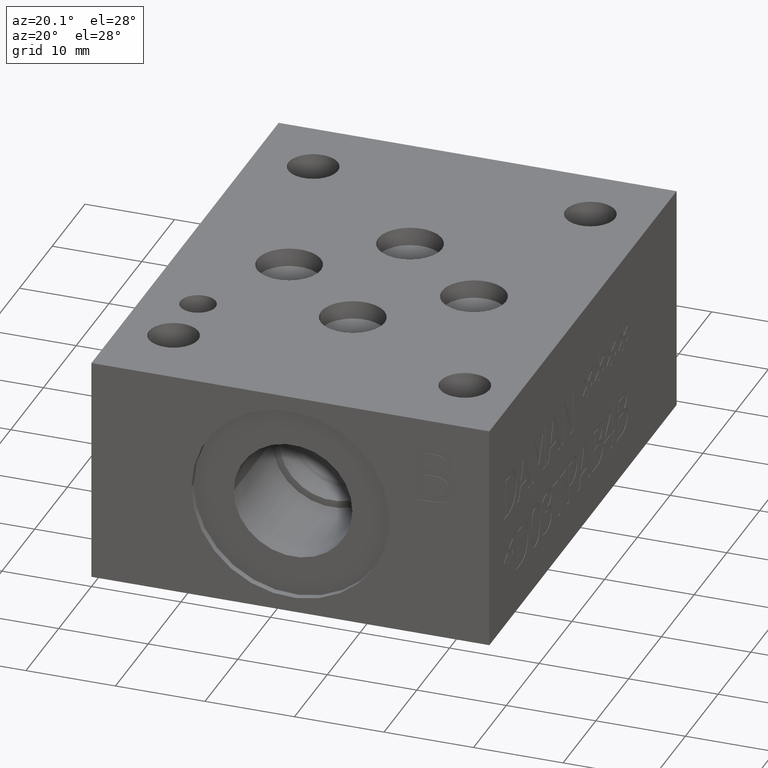
[diagram: clean part render]
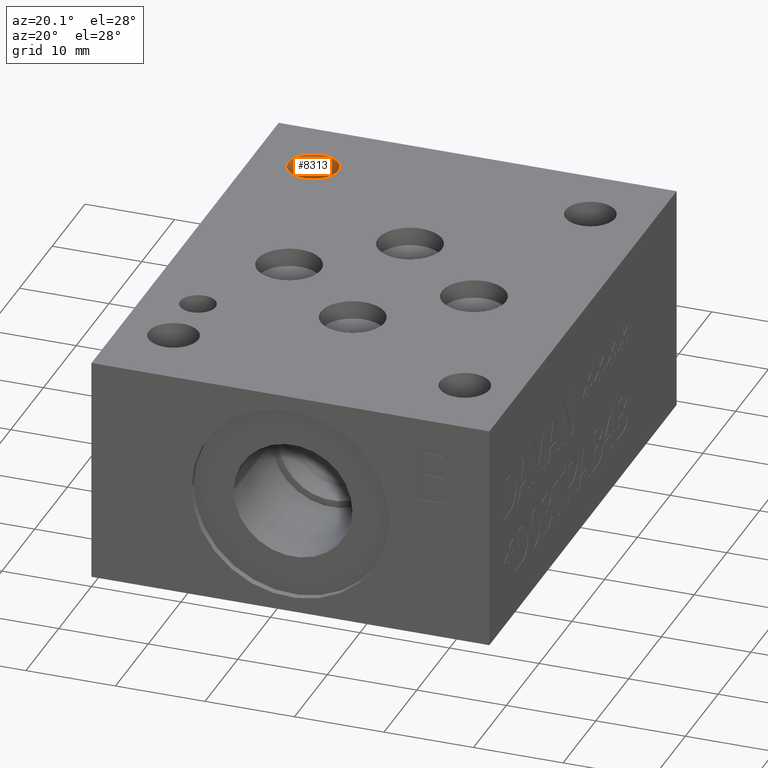
[diagram: same view with one face highlighted and labeled with its STEP entity id]
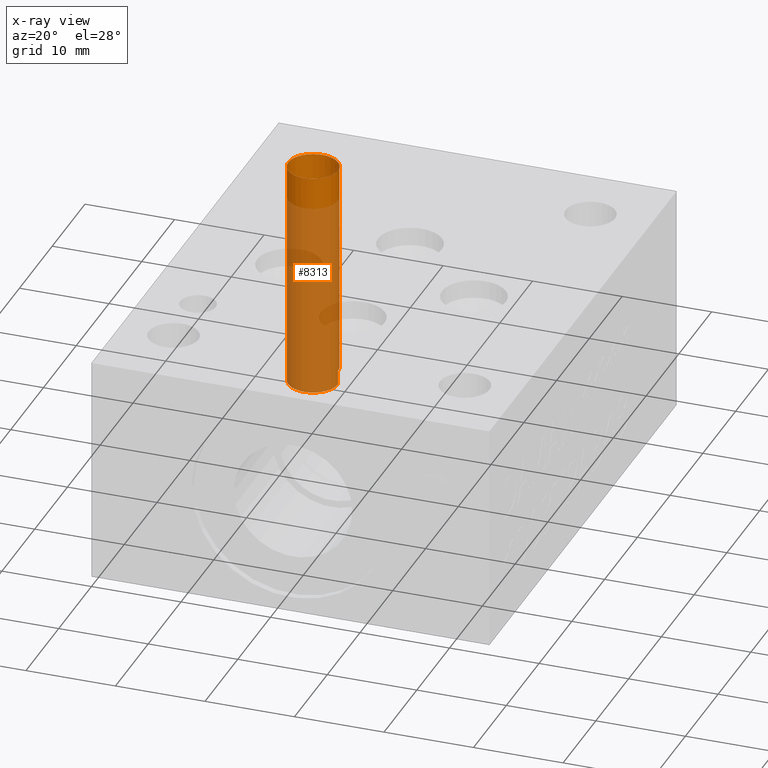
[diagram: x-ray of the same camera — body ghosted, the highlighted face saturated]
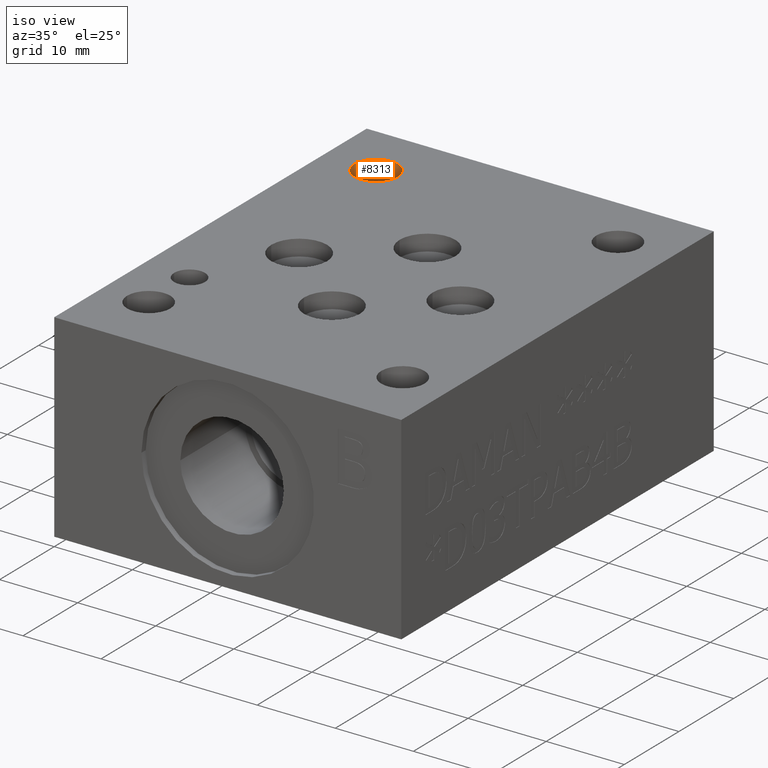
[diagram: same view with one face highlighted and labeled with its STEP entity id]
A machine part, auxiliary view. The second image highlights one B-rep face of the part: STEP entity #8313.
The next image is the same camera in x-ray: the body ghosted, the highlighted face saturated — about 79% of this face is hidden behind the body in this view.
A second angle (iso view) of the same face is appended — the face is thin or edge-on in the first view.
In plain terms, the highlighted cylindrical surface (bore or boss wall) has radius 2.7686 mm, axis along (0, 0, 1).
Its self-contained STEP definition (entity closure, byte-faithful):
#34=CYLINDRICAL_SURFACE('',#8710,2.7686);
#91=CIRCLE('',#8678,2.7686);
#92=CIRCLE('',#8679,2.7686);
#107=CIRCLE('',#8711,2.7686);
#883=FACE_OUTER_BOUND('',#1368,.T.);
#1368=EDGE_LOOP('',(#7356,#7357,#7358,#7359,#7360,#7361,#7362,#7363));
#2230=LINE('',#13858,#3096);
#2231=LINE('',#13860,#3097);
#2247=LINE('',#13969,#3113);
#3096=VECTOR('',#10215,10.);
#3097=VECTOR('',#10216,10.);
#3113=VECTOR('',#10322,2.7686);
#3323=B_SPLINE_CURVE_WITH_KNOTS('',3,(#13832,#13833,#13834,#13835,#13836,
#13837,#13838,#13839,#13840,#13841,#13842,#13843,#13844,#13845,#13846,#13847,
#13848,#13849,#13850,#13851,#13852,#13853,#13854),.UNSPECIFIED.,.F.,.F.,
(4,2,2,2,2,2,2,2,2,3,4),(-0.832402487174848,-0.831767737102274,-0.727664583287568,
-0.623561429472862,-0.519722649011999,-0.415883868551137,-0.312045088090275,
-0.208206307629412,-0.104103153814706,0.,0.000634750072574077),
 .UNSPECIFIED.);
#4030=VERTEX_POINT('',#13830);
#4031=VERTEX_POINT('',#13831);
#4032=VERTEX_POINT('',#13857);
#4033=VERTEX_POINT('',#13859);
#4041=VERTEX_POINT('',#13905);
#4058=VERTEX_POINT('',#13967);
#5128=EDGE_CURVE('',#4030,#4031,#3323,.T.);
#5130=EDGE_CURVE('',#4031,#4032,#2230,.T.);
#5131=EDGE_CURVE('',#4033,#4030,#2231,.T.);
#5144=EDGE_CURVE('',#4033,#4041,#91,.T.);
#5145=EDGE_CURVE('',#4041,#4032,#92,.T.);
#5172=EDGE_CURVE('',#4058,#4058,#107,.T.);
#5173=EDGE_CURVE('',#4058,#4041,#2247,.T.);
#7356=ORIENTED_EDGE('',*,*,#5172,.F.);
#7357=ORIENTED_EDGE('',*,*,#5173,.T.);
#7358=ORIENTED_EDGE('',*,*,#5144,.F.);
#7359=ORIENTED_EDGE('',*,*,#5131,.T.);
#7360=ORIENTED_EDGE('',*,*,#5128,.T.);
#7361=ORIENTED_EDGE('',*,*,#5130,.T.);
#7362=ORIENTED_EDGE('',*,*,#5145,.F.);
#7363=ORIENTED_EDGE('',*,*,#5173,.F.);
#8313=ADVANCED_FACE('',(#883),#34,.F.);
#8678=AXIS2_PLACEMENT_3D('',#13906,#10242,#10243);
#8679=AXIS2_PLACEMENT_3D('',#13907,#10244,#10245);
#8710=AXIS2_PLACEMENT_3D('',#13966,#10318,#10319);
#8711=AXIS2_PLACEMENT_3D('',#13968,#10320,#10321);
#10215=DIRECTION('',(0.,0.,-1.));
#10216=DIRECTION('',(0.,0.,1.));
#10242=DIRECTION('center_axis',(0.,0.,1.));
#10243=DIRECTION('ref_axis',(1.,0.,0.));
#10244=DIRECTION('center_axis',(0.,0.,1.));
#10245=DIRECTION('ref_axis',(1.,0.,0.));
#10318=DIRECTION('center_axis',(0.,0.,1.));
#10319=DIRECTION('ref_axis',(1.,0.,0.));
#10320=DIRECTION('center_axis',(0.,0.,-1.));
#10321=DIRECTION('ref_axis',(1.,0.,0.));
#10322=DIRECTION('',(0.,0.,-1.));
#13830=CARTESIAN_POINT('',(3.98780728211967,49.23155,1.59845));
#13831=CARTESIAN_POINT('',(9.52499271788033,49.23155,1.59845));
#13832=CARTESIAN_POINT('Ctrl Pts',(3.98780728211967,49.23155,1.59845));
#13833=CARTESIAN_POINT('Ctrl Pts',(3.98781213884221,49.2336675254575,1.59845560804538));
#13834=CARTESIAN_POINT('Ctrl Pts',(3.98781942296903,49.2357841961057,1.5984612138564));
#13835=CARTESIAN_POINT('Ctrl Pts',(3.98942091435395,49.5849056448523,1.59938583533858));
#13836=CARTESIAN_POINT('Ctrl Pts',(4.06034599833604,49.9547657842028,1.60036625578624));
#13837=CARTESIAN_POINT('Ctrl Pts',(4.34508453246657,50.6346435531098,1.6021700212815));
#13838=CARTESIAN_POINT('Ctrl Pts',(4.55889798979251,50.9446611797803,1.60299332103706));
#13839=CARTESIAN_POINT('Ctrl Pts',(5.05060849566874,51.433191475052,1.60429135974655));
#13840=CARTESIAN_POINT('Ctrl Pts',(5.36113729316654,51.6446158687736,1.60485353643975));
#13841=CARTESIAN_POINT('Ctrl Pts',(6.04096840970192,51.924920134895,1.60559905352143));
#13842=CARTESIAN_POINT('Ctrl Pts',(6.41027073179712,51.9938,1.6057823484187));
#13843=CARTESIAN_POINT('Ctrl Pts',(7.10252926820288,51.9938,1.6057823484187));
#13844=CARTESIAN_POINT('Ctrl Pts',(7.47183159029808,51.924920134895,1.60559905352143));
#13845=CARTESIAN_POINT('Ctrl Pts',(8.15166270683346,51.6446158687736,1.60485353643975));
#13846=CARTESIAN_POINT('Ctrl Pts',(8.46219150433125,51.433191475052,1.60429135974655));
#13847=CARTESIAN_POINT('Ctrl Pts',(8.95390201020749,50.9446611797803,1.60299332103706));
#13848=CARTESIAN_POINT('Ctrl Pts',(9.16771546753343,50.6346435531098,1.6021700212815));
#13849=CARTESIAN_POINT('Ctrl Pts',(9.45245400166396,49.9547657842028,1.60036625578624));
#13850=CARTESIAN_POINT('Ctrl Pts',(9.52337908564605,49.5849056448523,1.59938583533858));
#13851=CARTESIAN_POINT('Ctrl Pts',(9.5249708714064,49.2379,1.59846681740135));
#13852=CARTESIAN_POINT('Ctrl Pts',(9.52498057703097,49.2357841961057,1.5984612138564));
#13853=CARTESIAN_POINT('Ctrl Pts',(9.52498786115779,49.2336675254575,1.59845560804538));
#13854=CARTESIAN_POINT('Ctrl Pts',(9.52499271788033,49.23155,1.59845));
#13857=CARTESIAN_POINT('',(9.52499271788033,49.23155,0.));
#13858=CARTESIAN_POINT('',(9.52499271788033,49.23155,0.799225000000002));
#13859=CARTESIAN_POINT('',(3.98780728211967,49.23155,0.));
#13860=CARTESIAN_POINT('',(3.98780728211967,49.23155,0.799225000000002));
#13905=CARTESIAN_POINT('',(3.9878,49.2252,0.));
#13906=CARTESIAN_POINT('Origin',(6.7564,49.2252,0.));
#13907=CARTESIAN_POINT('Origin',(6.7564,49.2252,0.));
#13966=CARTESIAN_POINT('Origin',(6.7564,49.2252,-51.3273419323255));
#13967=CARTESIAN_POINT('',(3.9878,49.2252,25.4));
#13968=CARTESIAN_POINT('Origin',(6.7564,49.2252,25.4));
#13969=CARTESIAN_POINT('',(3.9878,49.2252,-51.3273419323255));